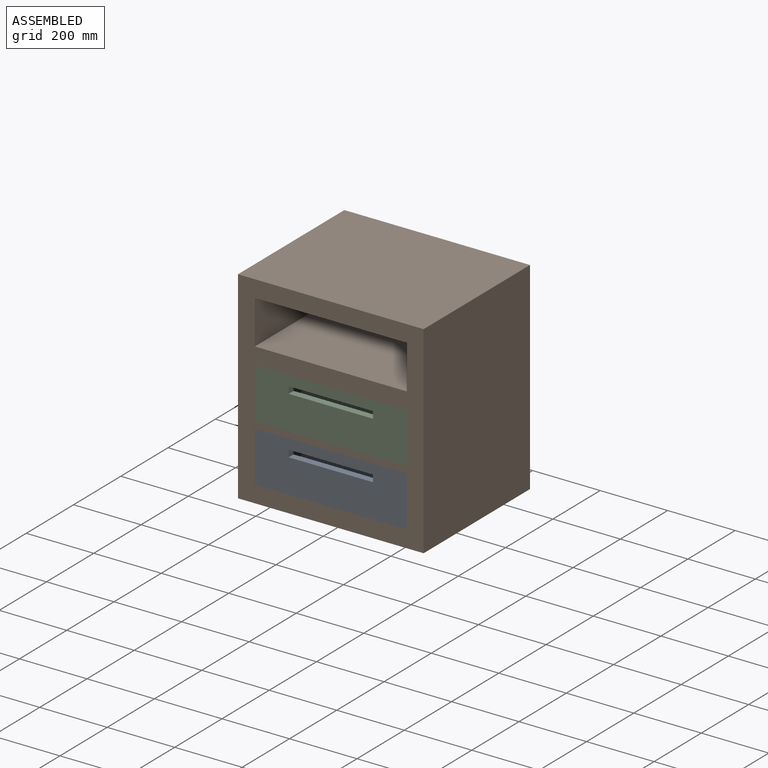
[diagram: assembled view]
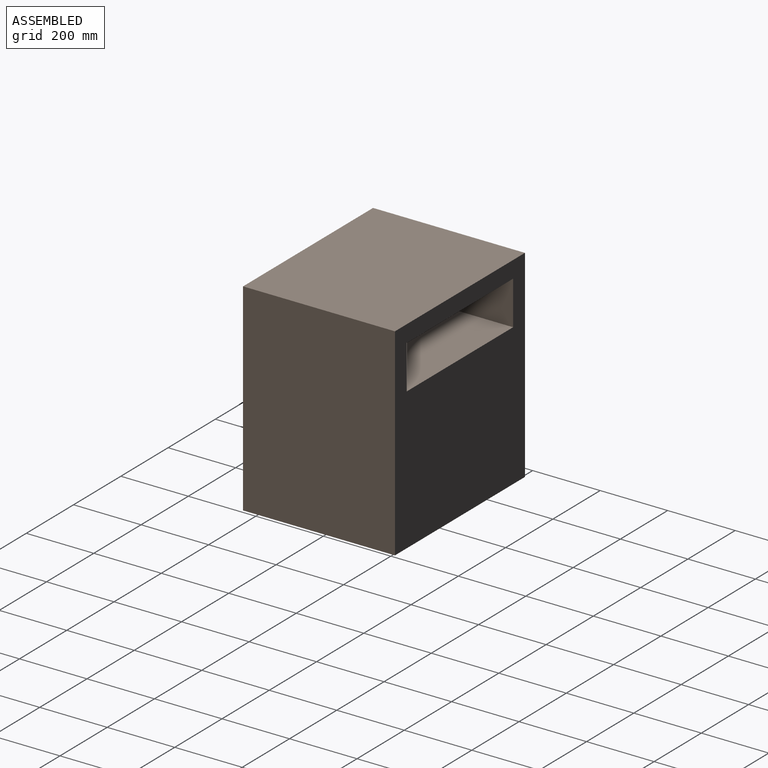
[diagram: assembled view, second angle]
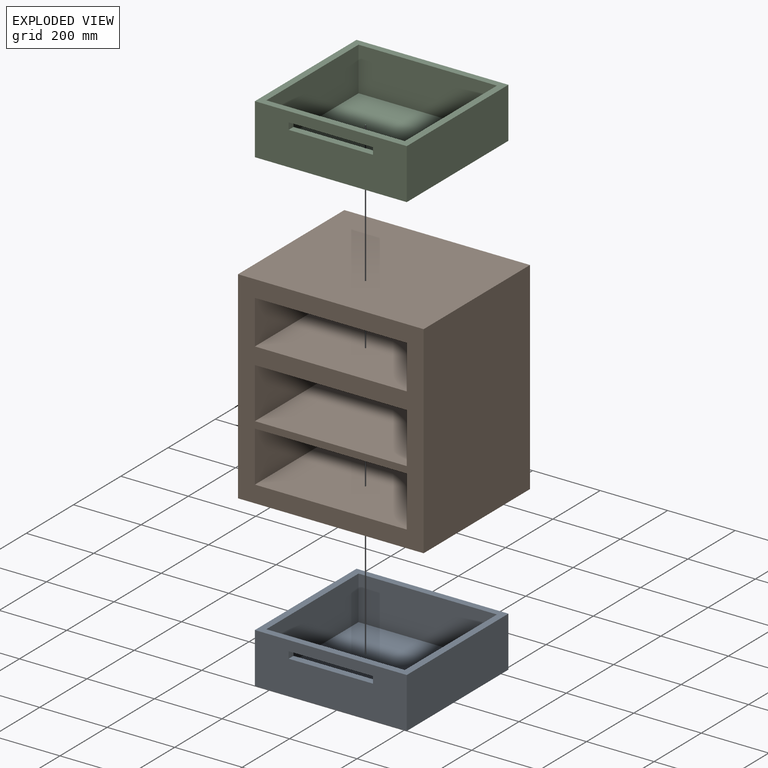
[diagram: exploded view]
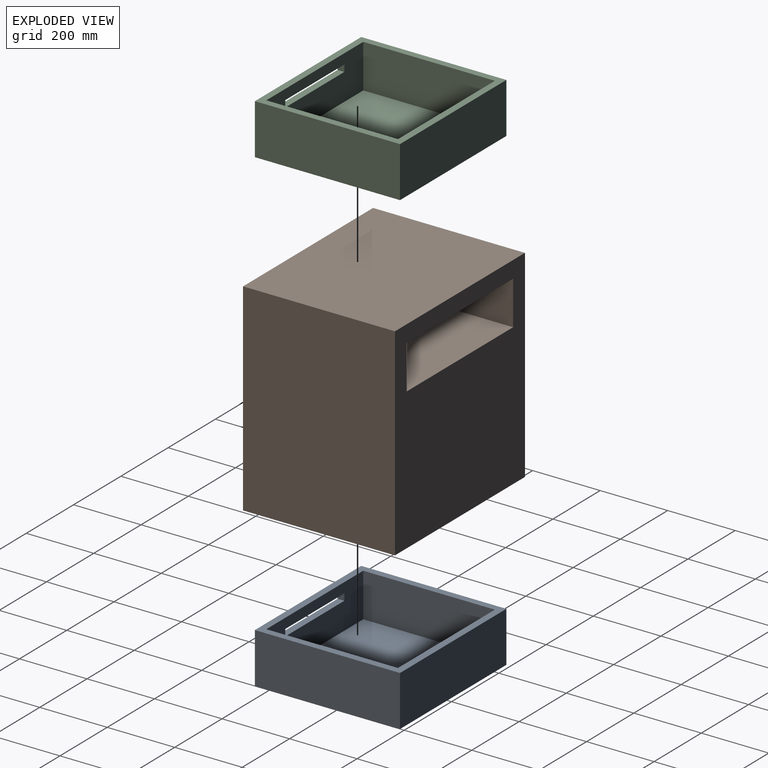
[diagram: exploded view, second angle]
ASSEMBLY  parts=3 mates=6
PART A: 15 faces, bbox 450x430x150 mm
  f0: plane 450x150mm, normal (0,1,0), area 67500mm2, adj f1,f2,f3,f4
  f1: plane 450x430mm, normal (0,0,1), area 33600mm2, adj f0,f2,f4,f5,f6,f7,f9,f10
  f2: plane 430x150mm, normal (-1,0,0), area 64500mm2, adj f0,f1,f3,f5
  f3: plane 450x430mm, normal (0,0,-1), area 193500mm2, adj f0,f2,f4,f5
  f4: plane 430x150mm, normal (1,0,0), area 64500mm2, adj f0,f1,f3,f5
  f5: plane 450x150mm, normal (0,-1,0), area 62500mm2, adj f1,f2,f3,f4,f11,f12,f13,f14
  f6: plane 410x130mm, normal (0,-1,0), area 53300mm2, adj f1,f7,f8,f9
  f7: plane 390x130mm, normal (1,0,0), area 50700mm2, adj f1,f6,f8,f10
  f8: plane 410x390mm, normal (0,0,1), area 159900mm2, adj f6,f7,f9,f10
  f9: plane 390x130mm, normal (-1,0,0), area 50700mm2, adj f1,f6,f8,f10
  f10: plane 410x130mm, normal (0,1,0), area 48300mm2, adj f1,f7,f8,f9,f11,f12,f13,f14
  f11: plane 250x20mm, normal (0,0,1), area 5000mm2, adj f5,f10,f12,f13
  f12: plane 20x20mm, normal (1,0,0), area 400mm2, adj f5,f10,f11,f14
  f13: plane 20x20mm, normal (-1,0,0), area 400mm2, adj f5,f10,f11,f14
  f14: plane 250x20mm, normal (0,0,-1), area 5000mm2, adj f5,f10,f12,f13
PART B: 20 faces, bbox 550x450x600 mm
  f0: plane 600x550mm, normal (0,1,0), area 271500mm2, adj f2,f3,f4,f5,f6,f7,f8,f9
  f1: plane 600x550mm, normal (0,-1,0), area 136500mm2, adj f2,f3,f4,f5,f6,f7,f8,f9
  f2: plane 600x450mm, normal (-1,0,0), area 270000mm2, adj f0,f1,f4,f5
  f3: plane 600x450mm, normal (1,0,0), area 270000mm2, adj f0,f1,f4,f5
  f4: plane 550x450mm, normal (0,0,1), area 247500mm2, adj f0,f1,f2,f3
  f5: plane 550x450mm, normal (0,0,-1), area 247500mm2, adj f0,f1,f2,f3
  f6: plane 450x450mm, normal (0,0,-1), area 202500mm2, adj f0,f1,f7,f9
  f7: plane 450x130mm, normal (1,0,0), area 58500mm2, adj f0,f1,f6,f8
  f8: plane 450x450mm, normal (0,0,1), area 202500mm2, adj f0,f1,f7,f9
  f9: plane 450x130mm, normal (-1,0,0), area 58500mm2, adj f0,f1,f6,f8
  f10: plane 450x430mm, normal (0,0,-1), area 193500mm2, adj f1,f11,f13,f14
  f11: plane 430x150mm, normal (1,0,0), area 64500mm2, adj f1,f10,f12,f14
  f12: plane 450x430mm, normal (0,0,1), area 193500mm2, adj f1,f11,f13,f14
  f13: plane 430x150mm, normal (-1,0,0), area 64500mm2, adj f1,f10,f12,f14
  f14: plane 450x150mm, normal (0,-1,0), area 67500mm2, adj f10,f11,f12,f13
  f15: plane 450x430mm, normal (0,0,-1), area 193500mm2, adj f1,f16,f18,f19
  f16: plane 430x150mm, normal (1,0,0), area 64500mm2, adj f1,f15,f17,f19
  f17: plane 450x430mm, normal (0,0,1), area 193500mm2, adj f1,f16,f18,f19
  f18: plane 430x150mm, normal (-1,0,0), area 64500mm2, adj f1,f15,f17,f19
  f19: plane 450x150mm, normal (0,-1,0), area 67500mm2, adj f15,f16,f17,f18
PART C: 15 faces, bbox 450x430x150 mm
  f0: plane 450x150mm, normal (0,1,0), area 67500mm2, adj f1,f2,f3,f4
  f1: plane 450x430mm, normal (0,0,1), area 33600mm2, adj f0,f2,f4,f5,f6,f7,f9,f10
  f2: plane 430x150mm, normal (-1,0,0), area 64500mm2, adj f0,f1,f3,f5
  f3: plane 450x430mm, normal (0,0,-1), area 193500mm2, adj f0,f2,f4,f5
  f4: plane 430x150mm, normal (1,0,0), area 64500mm2, adj f0,f1,f3,f5
  f5: plane 450x150mm, normal (0,-1,0), area 62500mm2, adj f1,f2,f3,f4,f11,f12,f13,f14
  f6: plane 410x130mm, normal (0,-1,0), area 53300mm2, adj f1,f7,f8,f9
  f7: plane 390x130mm, normal (1,0,0), area 50700mm2, adj f1,f6,f8,f10
  f8: plane 410x390mm, normal (0,0,1), area 159900mm2, adj f6,f7,f9,f10
  f9: plane 390x130mm, normal (-1,0,0), area 50700mm2, adj f1,f6,f8,f10
  f10: plane 410x130mm, normal (0,1,0), area 48300mm2, adj f1,f7,f8,f9,f11,f12,f13,f14
  f11: plane 250x20mm, normal (0,0,1), area 5000mm2, adj f5,f10,f12,f13
  f12: plane 20x20mm, normal (1,0,0), area 400mm2, adj f5,f10,f11,f14
  f13: plane 20x20mm, normal (-1,0,0), area 400mm2, adj f5,f10,f11,f14
  f14: plane 250x20mm, normal (0,0,-1), area 5000mm2, adj f5,f10,f12,f13
PLACE A at identity
PLACE B at identity fixed
PLACE C at identity
MATE planar A.f3 <-> B.f17  axis (0,0,-1) through (0,-10,50)mm
MATE planar C.f3 <-> B.f12  axis (0,0,-1) through (0,-10,220)mm
MATE planar A.f4 <-> B.f18  axis (1,0,0) through (225,-10,125)mm
MATE planar C.f4 <-> B.f13  axis (1,0,0) through (225,-10,295)mm
MATE planar B.f19 <-> A.f0  axis (0,-1,0) through (0,205,125)mm
MATE planar B.f14 <-> C.f0  axis (0,-1,0) through (0,205,295)mm
